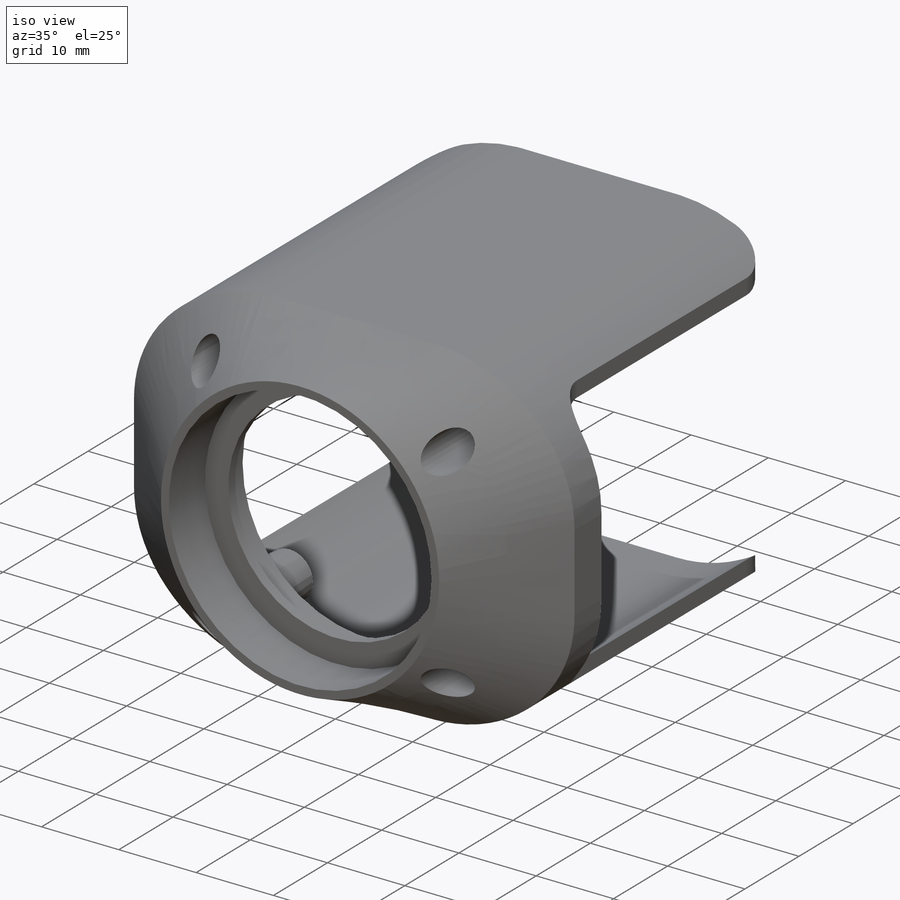
[diagram: iso view]
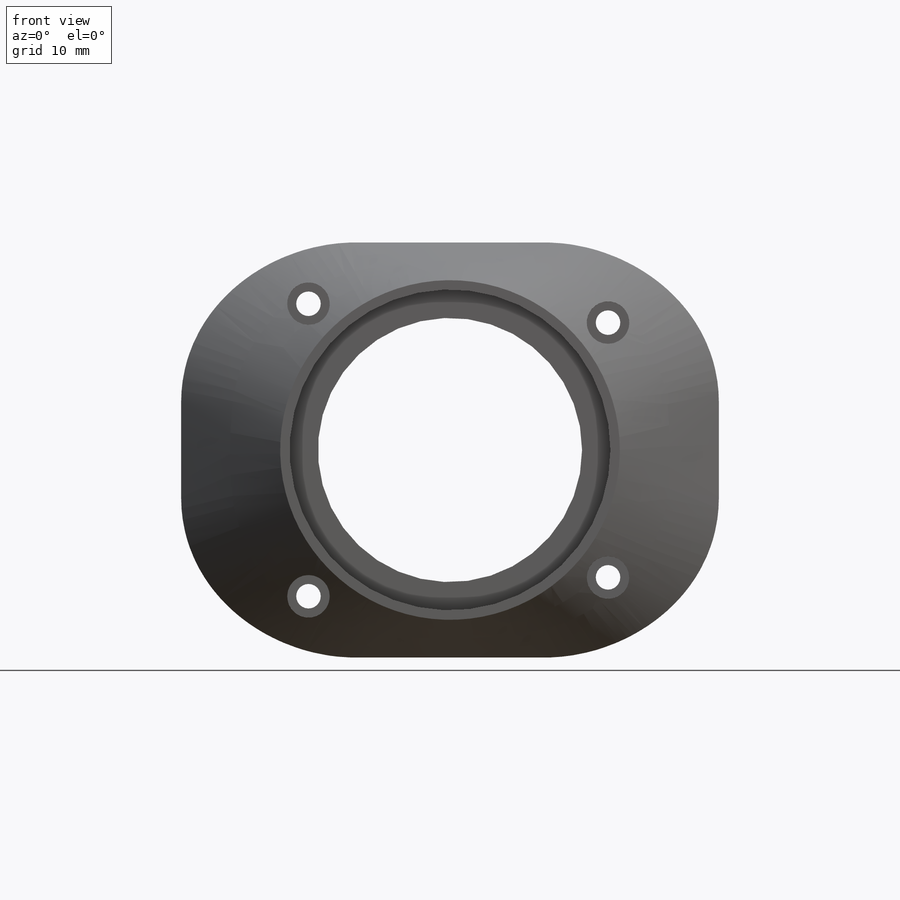
[diagram: front view]
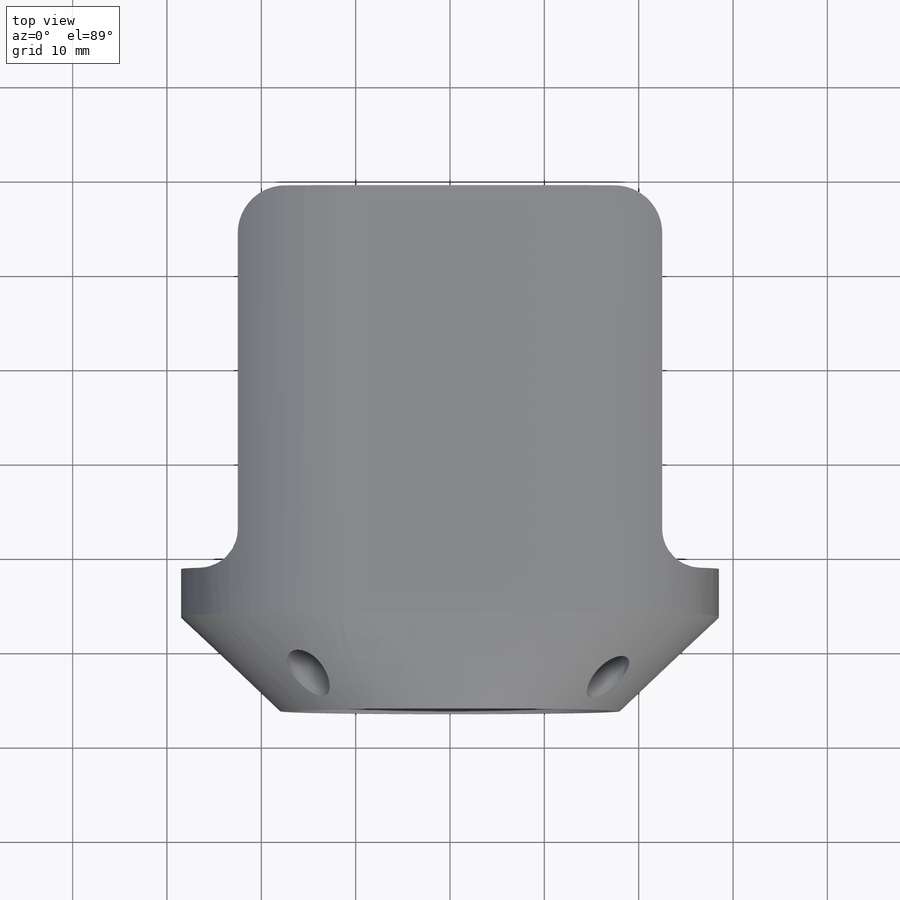
[diagram: top view]
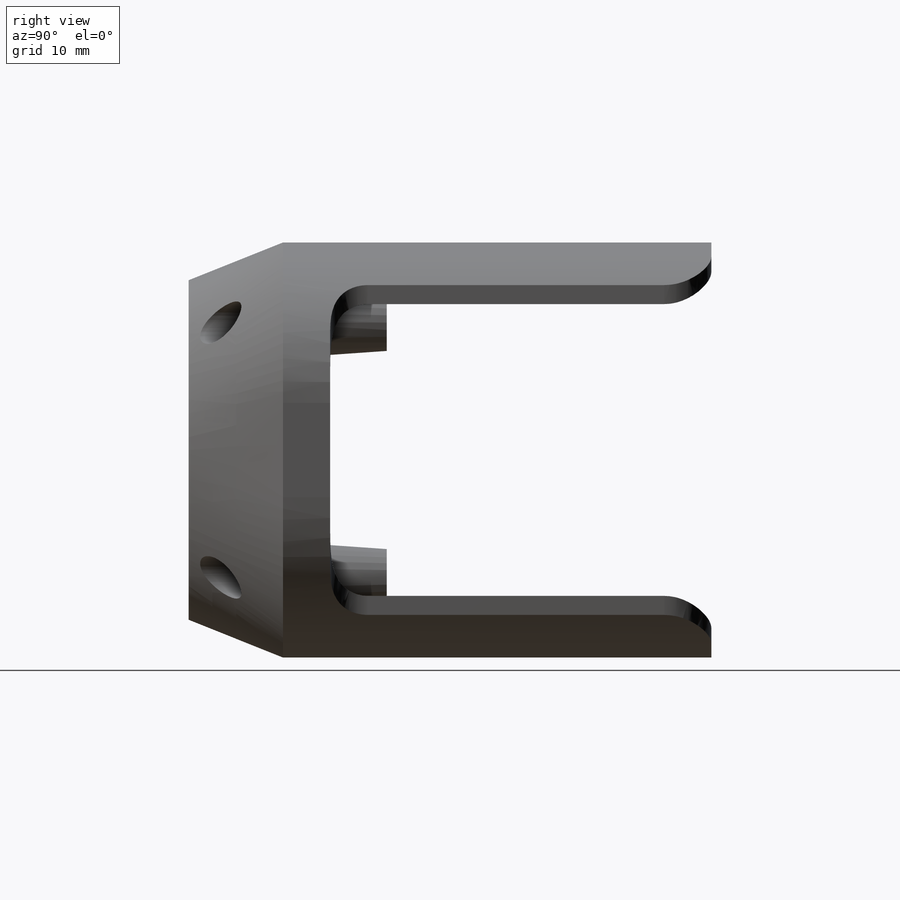
[diagram: right view]
SOLIDWORKS PART (.sldprt)
format: sldprt  version: not decoded by parser v0  size: 700,416 bytes
history: native  units: mm
features: sketch x17, cut_extrude x10, plane x8, extrude x5, mirror x2, material x1, shell x1, fillet x1 (+9 scaffold rows collapsed)
feature tree (54):
  scaffold x9  (default folders/planes/origin — collapsed)
  material  "材质 <未指定>"
  plane  "前视基准面"
  plane  "上视基准面"
  plane  "右视基准面"
  sketch  "草图1"  dims[c1.D1=55.0mm c1.D2=44.0mm c1.D3=22.0mm c1.D4=28.5mm c1.D5=10.0mm c1.D6=10.0mm c1.D7=4.0mm c1.D8=4.0mm c2.D1=10.0mm c2.D2=20.0mm]
  extrude  "凸台-拉伸1"  Depth=46.5mm
  sketch  "草图2"  dims[D1=44.0mm D2=57.0mm]
  plane  "基准面1"  Offset=10mm
  sketch  "草图3"  dims[c1.D1=36.0mm c2.D1=28.5mm c2.D2=22.0mm]
  sketch  "草图8"  dims[D1=34.0mm D2=28.5mm]
  cut_extrude  "切除-拉伸1"  Depth=12mm
  shell  "抽壳2"  Thickness=1.5mm
  sketch  "草图10"  dims[D1=34.0mm]
  cut_extrude  "切除-拉伸3"  Depth=1.5mm
  fillet  "圆角1"  Radius=1mm
  plane  "基准面2"
  plane  "基准面3"  Offset=6.7mm
  sketch  "草图11"  dims[D1=28.0mm D2=34.0mm]
  extrude  "凸台-拉伸2"  Depth=1.3mm
  sketch  "草图30"  dims[c1.D3=5.0mm c1.D4=4.0mm c1.D1=15.0mm c1.D2=6.0mm c1.D5=1.1mm c2.D1=15.0mm]
  cut_extrude  "切除-拉伸12"  [1 undecoded]
  sketch  "草图31"
  cut_extrude  "切除-拉伸13"  Depth=1mm
  plane  "基准面4"  Offset=8.5mm
  sketch  "草图17"  dims[D3=6.0mm D1=16.75mm D2=13.5mm]
  extrude  "凸台-拉伸4"  [1 undecoded]
  mirror  "镜向3"
  sketch  "草图20"  dims[D1=~21.904623mm]
  cut_extrude  "切除-拉伸5"  Depth=2mm
  sketch  "草图21"  dims[D1=4.5mm]
  cut_extrude  "切除-拉伸6"  Depth=20mm
  sketch  "草图23"  dims[D1=~1.421959mm]
  cut_extrude  "切除-拉伸8"  Depth=2mm
  sketch  "草图24"  dims[D1=4.5mm]
  cut_extrude  "切除-拉伸9"  Depth=20mm
  plane  "基准面5"  Offset=7mm
  sketch  "草图26"  dims[D3=~2.886905mm D1=15.0mm D2=15.5mm]
  extrude  "凸台-拉伸6"  [1 undecoded]
  mirror  "镜向5"
  sketch  "草图27"  dims[D1=~1.697769mm]
  cut_extrude  "切除-拉伸10"  Depth=2mm
  sketch  "草图28"  dims[D1=4.5mm D2=4.5mm]
  cut_extrude  "切除-拉伸11"  Depth=20mm
  sketch  "草图33"  dims[D1=34.0mm D2=32.4mm]
  extrude  "凸台-拉伸7"  [1 undecoded]
decode coverage: 29 of 36 modeling features carry decoded parameters
note: ~ marks probable driven/reference dimensions
note: 4 parameter values undecoded
summary: no parameter record found for 4 features
note: suppression state not decoded; provenance and decode notes live in map.json
